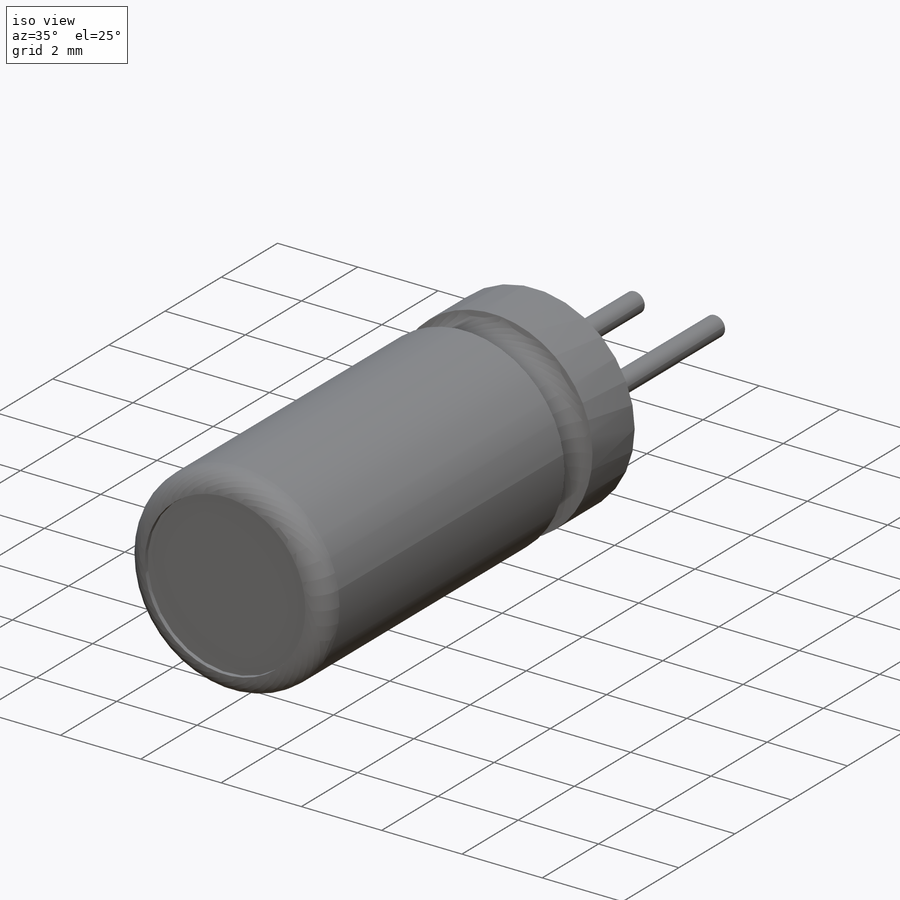
[diagram: iso view]
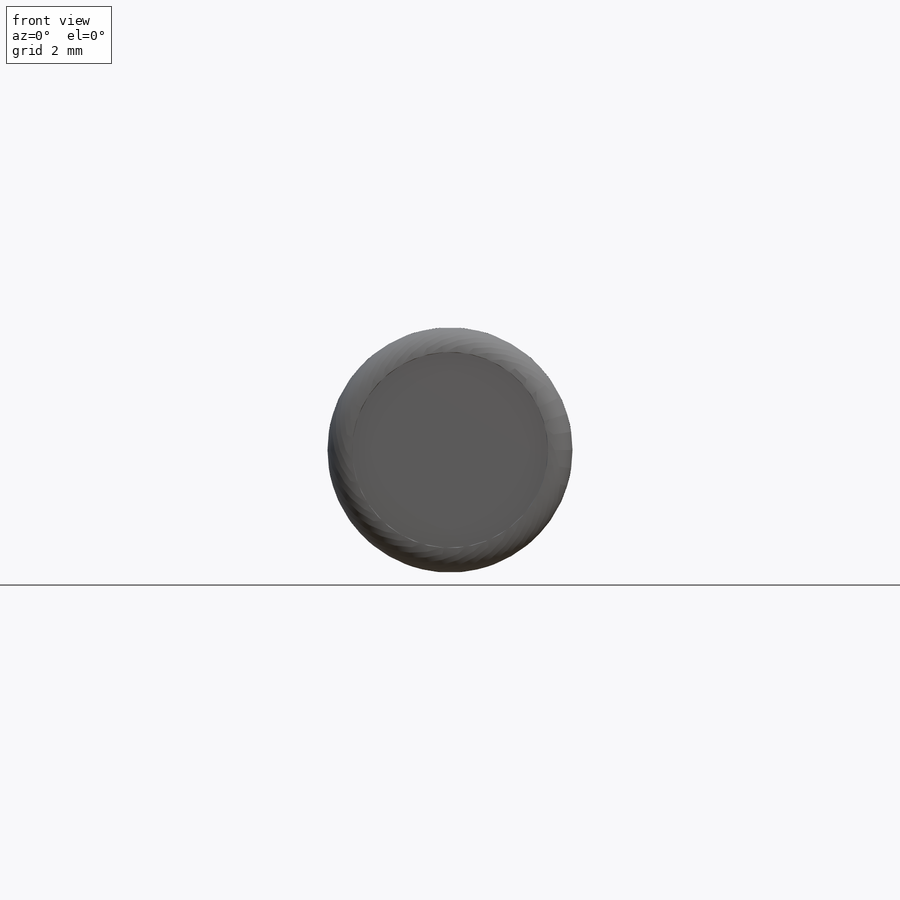
[diagram: front view]
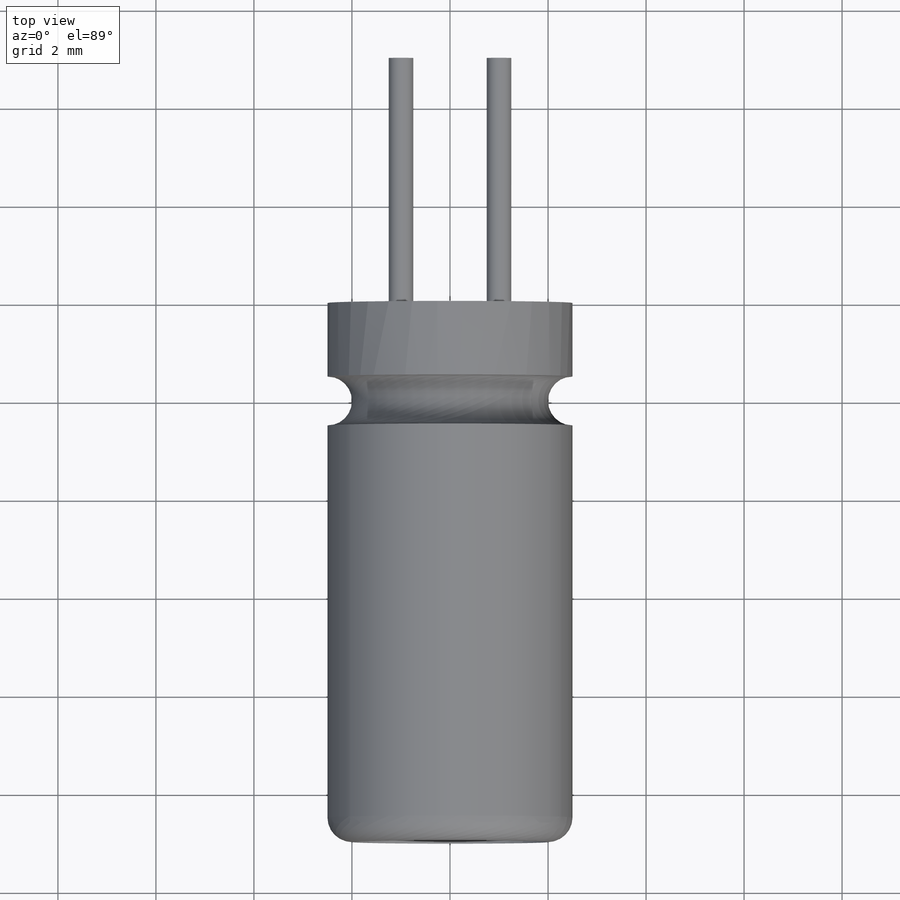
[diagram: top view]
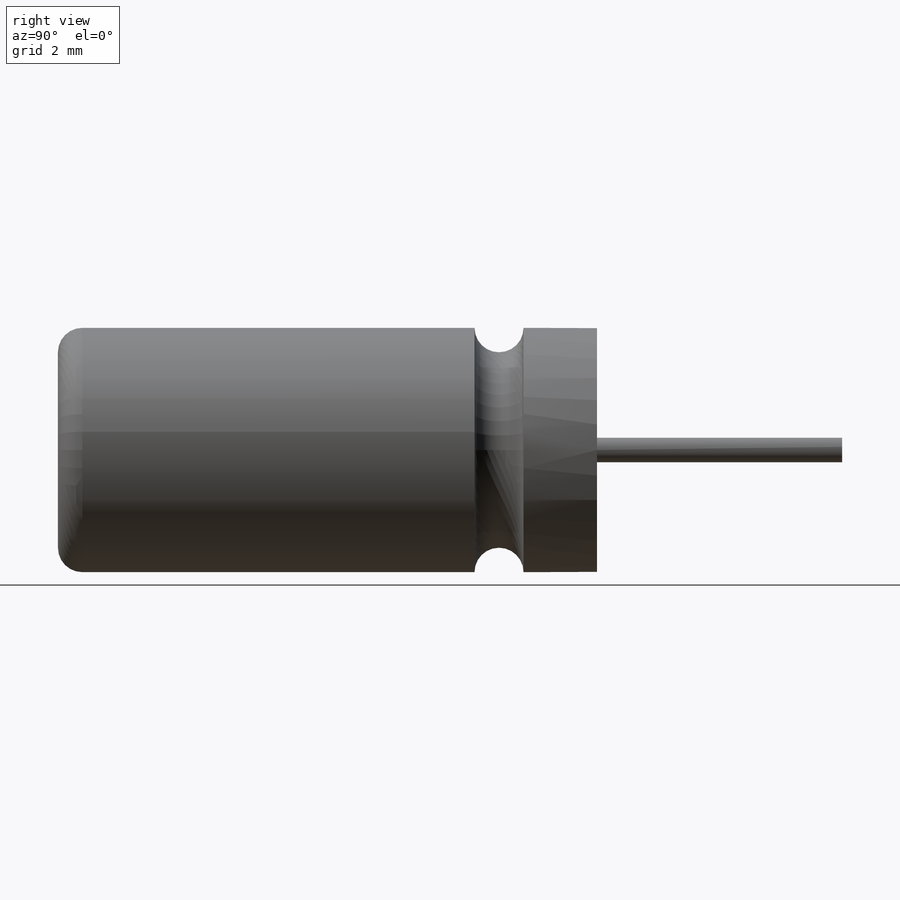
[diagram: right view]
SOLIDWORKS PART (.sldprt)
format: sldprt  version: not decoded by parser v0  size: 214,528 bytes
history: native  units: mm
features: sketch x4, material x1, revolve x1, cut_extrude x1, extrude x1, plane x1 (+12 scaffold rows collapsed)
feature tree (21):
  scaffold x12  (default folders/planes/origin — collapsed)
  material  "Material <not specified>"
  sketch  "Sketch2"  dims[D4=0.5mm D1=11.0mm D2=5.0mm D3=2.0mm]
  revolve  "Base-Revolve"  Angle=360deg
  sketch  "Sketch3"  dims[D1=0.0mm]
  cut_extrude  "Cut-Extrude1"  Depth=0.1mm
  sketch  "Sketch4"  dims[D2=0.5mm D1=2.0mm]
  extrude  "Boss-Extrude1"  Depth=5mm
  plane  "Board Plane"  Offset=0.5mm
  sketch  "Component_Outline"  dims[D1=5.0mm]
decode coverage: 7 of 7 modeling features carry decoded parameters
note: suppression state not decoded; provenance and decode notes live in map.json
